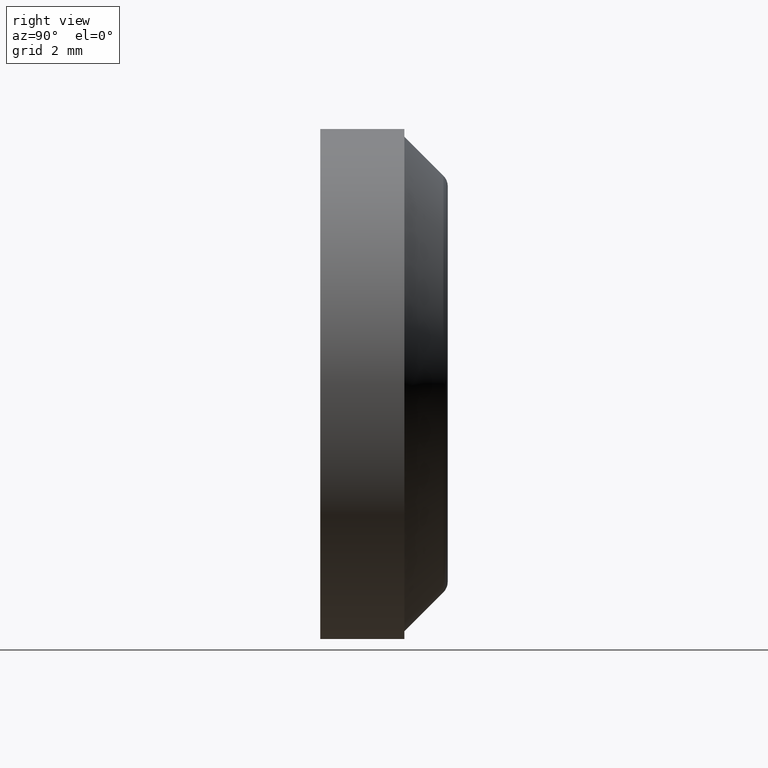
[diagram: clean part render]
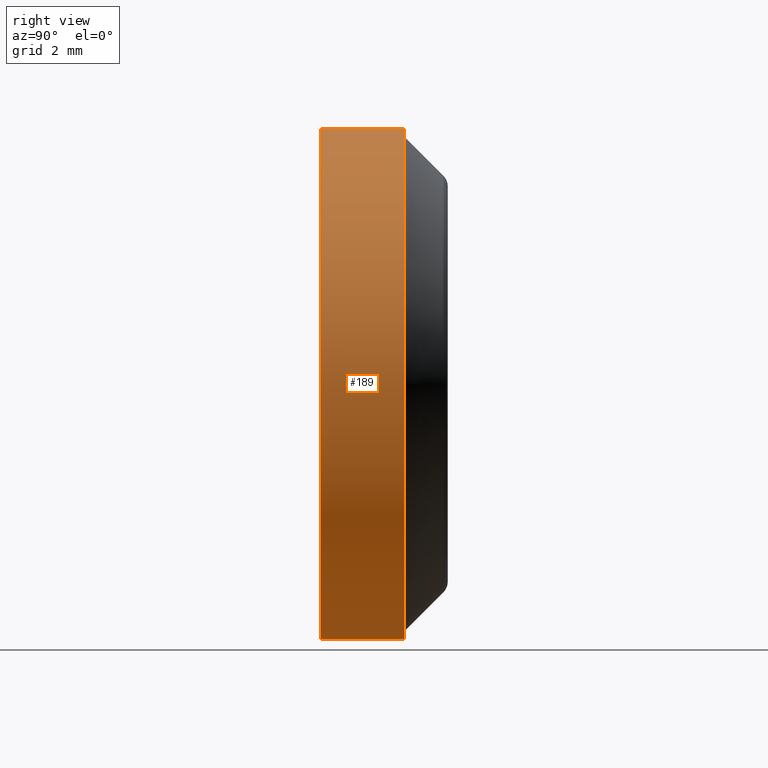
[diagram: same view with one face highlighted and labeled with its STEP entity id]
A machine part, right view. The second image highlights one B-rep face of the part: STEP entity #189.
In plain terms, the highlighted cylindrical surface (partial cylindrical patch) has radius 5 mm, axis along (-0, -1, -0).
Its self-contained STEP definition (entity closure, byte-faithful):
#12 = ORIENTED_EDGE ( 'NONE', *, *, #280, .T. ) ;
#25 = VECTOR ( 'NONE', #301, 1000.000000000000000 ) ;
#32 = VERTEX_POINT ( 'NONE', #431 ) ;
#36 = CYLINDRICAL_SURFACE ( 'NONE', #81, 5.000000000000000000 ) ;
#39 = ORIENTED_EDGE ( 'NONE', *, *, #263, .F. ) ;
#48 = FACE_OUTER_BOUND ( 'NONE', #330, .T. ) ;
#62 = CARTESIAN_POINT ( 'NONE',  ( 0.0000000000000000000, 2.500000000000000000, 0.0000000000000000000 ) ) ;
#66 = CARTESIAN_POINT ( 'NONE',  ( 6.123233995736766300E-016, 2.500000000000000000, 5.000000000000000000 ) ) ;
#81 = AXIS2_PLACEMENT_3D ( 'NONE', #62, #293, #106 ) ;
#102 = DIRECTION ( 'NONE',  ( 0.0000000000000000000, 0.0000000000000000000, 1.000000000000000000 ) ) ;
#103 = AXIS2_PLACEMENT_3D ( 'NONE', #360, #331, #102 ) ;
#106 = DIRECTION ( 'NONE',  ( 0.0000000000000000000, 0.0000000000000000000, -1.000000000000000000 ) ) ;
#107 = CARTESIAN_POINT ( 'NONE',  ( 0.0000000000000000000, 0.0000000000000000000, -5.000000000000000000 ) ) ;
#134 = CARTESIAN_POINT ( 'NONE',  ( 6.123233995736766300E-016, 0.0000000000000000000, 5.000000000000000000 ) ) ;
#160 = DIRECTION ( 'NONE',  ( 0.0000000000000000000, 1.000000000000000000, 0.0000000000000000000 ) ) ;
#161 = AXIS2_PLACEMENT_3D ( 'NONE', #296, #160, #443 ) ;
#183 = ORIENTED_EDGE ( 'NONE', *, *, #339, .F. ) ;
#189 = ADVANCED_FACE ( 'NONE', ( #48 ), #36, .T. ) ;
#219 = CIRCLE ( 'NONE', #161, 5.000000000000000000 ) ;
#234 = CIRCLE ( 'NONE', #103, 5.000000000000000000 ) ;
#250 = CARTESIAN_POINT ( 'NONE',  ( 0.0000000000000000000, 1.649999999999999900, -5.000000000000000000 ) ) ;
#256 = VERTEX_POINT ( 'NONE', #250 ) ;
#263 = EDGE_CURVE ( 'NONE', #32, #256, #234, .T. ) ;
#272 = EDGE_CURVE ( 'NONE', #32, #382, #441, .T. ) ;
#280 = EDGE_CURVE ( 'NONE', #382, #391, #219, .T. ) ;
#293 = DIRECTION ( 'NONE',  ( -0.0000000000000000000, -1.000000000000000000, -0.0000000000000000000 ) ) ;
#296 = CARTESIAN_POINT ( 'NONE',  ( 0.0000000000000000000, 0.0000000000000000000, 0.0000000000000000000 ) ) ;
#301 = DIRECTION ( 'NONE',  ( -0.0000000000000000000, -1.000000000000000000, -0.0000000000000000000 ) ) ;
#318 = ORIENTED_EDGE ( 'NONE', *, *, #272, .T. ) ;
#330 = EDGE_LOOP ( 'NONE', ( #39, #318, #12, #183 ) ) ;
#331 = DIRECTION ( 'NONE',  ( -0.0000000000000000000, 1.000000000000000000, -0.0000000000000000000 ) ) ;
#339 = EDGE_CURVE ( 'NONE', #256, #391, #434, .T. ) ;
#360 = CARTESIAN_POINT ( 'NONE',  ( 0.0000000000000000000, 1.649999999999999900, 0.0000000000000000000 ) ) ;
#380 = CARTESIAN_POINT ( 'NONE',  ( 0.0000000000000000000, 2.500000000000000000, -5.000000000000000000 ) ) ;
#382 = VERTEX_POINT ( 'NONE', #134 ) ;
#391 = VERTEX_POINT ( 'NONE', #107 ) ;
#401 = DIRECTION ( 'NONE',  ( -0.0000000000000000000, -1.000000000000000000, -0.0000000000000000000 ) ) ;
#431 = CARTESIAN_POINT ( 'NONE',  ( 6.123233995736766300E-016, 1.649999999999999900, 5.000000000000000000 ) ) ;
#434 = LINE ( 'NONE', #380, #513 ) ;
#441 = LINE ( 'NONE', #66, #25 ) ;
#443 = DIRECTION ( 'NONE',  ( 0.0000000000000000000, 0.0000000000000000000, 1.000000000000000000 ) ) ;
#513 = VECTOR ( 'NONE', #401, 1000.000000000000000 ) ;